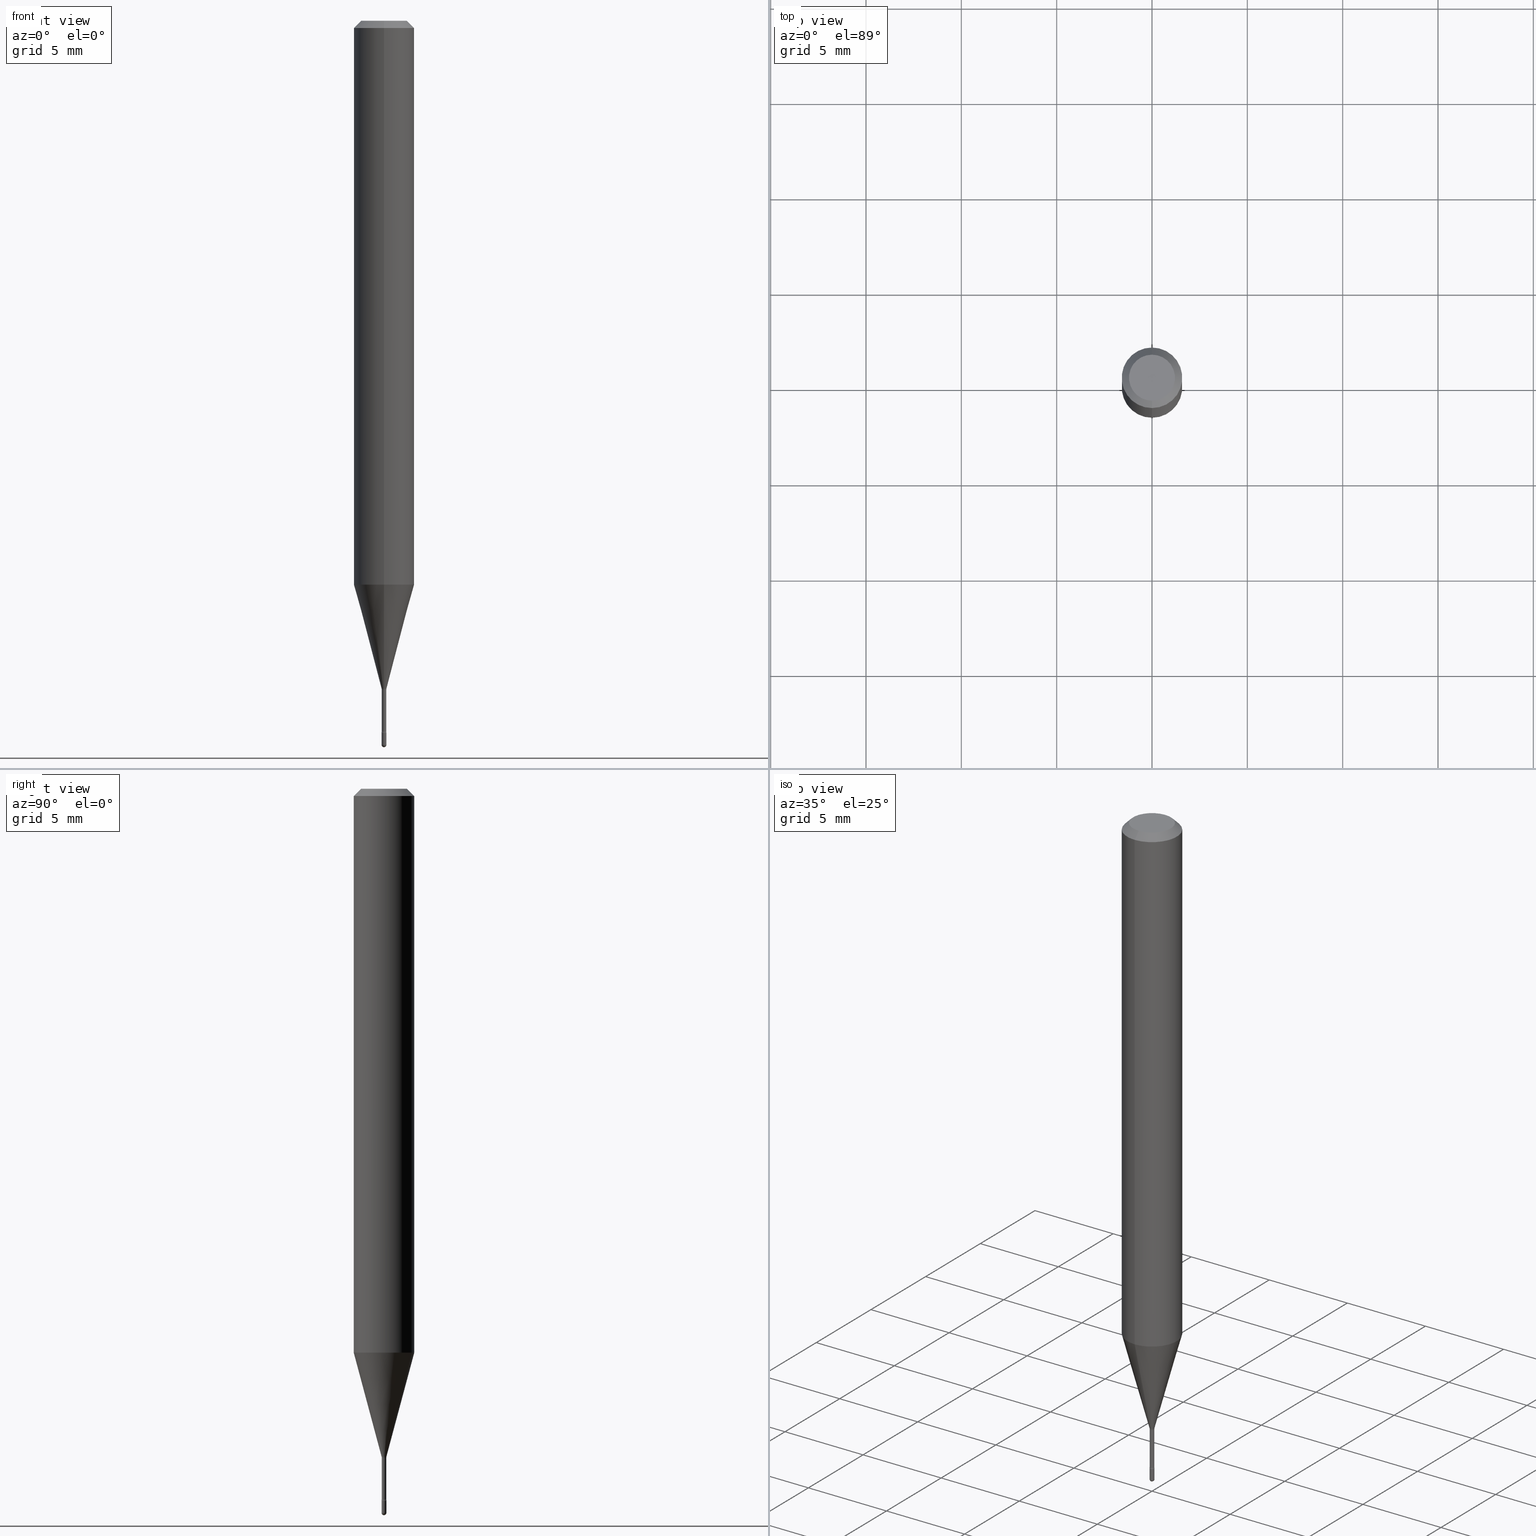
[diagram: canonical four-view strip — front | top / right | iso, engineering-drawing reading convention]
A machine part, canonical four-view strip (front | top / right | iso — engineering-drawing reading convention). The complete STEP part file that produces these views, byte-faithful:
ISO-10303-21;
HEADER;
FILE_DESCRIPTION (( 'STEP AP203' ),
    '1' );
FILE_NAME ('03724.STEP',
    '2024-04-09T20:15:57',
    ( '' ),
    ( '' ),
    'SwSTEP 2.0',
    'SolidWorks 2023',
    '' );
FILE_SCHEMA (( 'CONFIG_CONTROL_DESIGN' ));
ENDSEC;

DATA;
#1 = EDGE_LOOP ( 'NONE', ( #414, #298, #215, #72 ) ) ;
#2 = AXIS2_PLACEMENT_3D ( 'NONE', #37, #175, #291 ) ;
#3 = AXIS2_PLACEMENT_3D ( 'NONE', #145, #476, #554 ) ;
#4 = DIRECTION ( 'NONE',  ( 0.000000000000000000, 0.000000000000000000, 1.000000000000000000 ) ) ;
#5 = ORIENTED_EDGE ( 'NONE', *, *, #209, .T. ) ;
#6 = CARTESIAN_POINT ( 'NONE',  ( -1.169113584055446105E-44, 1.669184350826100908E-30, 4.780733988912460139E-16 ) ) ;
#7 = UNCERTAINTY_MEASURE_WITH_UNIT (LENGTH_MEASURE( 1.000000000000000082E-05 ), #136, 'distance_accuracy_value', 'NONE');
#8 = LINE ( 'NONE', #413, #406 ) ;
#9 = ORIENTED_EDGE ( 'NONE', *, *, #57, .F. ) ;
#10 = DIRECTION ( 'NONE',  ( -2.443524030459947148E-29, 3.494266368371376685E-15, 1.000000000000000000 ) ) ;
#11 = VERTEX_POINT ( 'NONE', #20 ) ;
#12 = CIRCLE ( 'NONE', #474, 0.004700000000000041818 ) ;
#13 = CALENDAR_DATE ( 2024, 9, 4 ) ;
#14 = FACE_OUTER_BOUND ( 'NONE', #1, .T. ) ;
#15 = ORIENTED_EDGE ( 'NONE', *, *, #244, .F. ) ;
#16 = FACE_OUTER_BOUND ( 'NONE', #45, .T. ) ;
#17 = DIRECTION ( 'NONE',  ( 6.982962677686265922E-15, 1.000000000000000000, 0.000000000000000000 ) ) ;
#18 = DATE_AND_TIME ( #105, #93 ) ;
#19 = CARTESIAN_POINT ( 'NONE',  ( -3.491481338839534301E-17, -0.005000000000005126212, -1.470000000000000195 ) ) ;
#20 = CARTESIAN_POINT ( 'NONE',  ( 4.440892098500908179E-16, 0.06249999999999591299, -1.164287463322519978 ) ) ;
#21 = DIRECTION ( 'NONE',  ( 7.105427357601001859E-15, 1.000000000000000000, 0.000000000000000000 ) ) ;
#22 = CIRCLE ( 'NONE', #418, 0.005211112605663922176 ) ;
#23 = ORIENTED_EDGE ( 'NONE', *, *, #234, .F. ) ;
#24 = AXIS2_PLACEMENT_3D ( 'NONE', #83, #385, #30 ) ;
#25 = EDGE_LOOP ( 'NONE', ( #162, #456 ) ) ;
#26 = CARTESIAN_POINT ( 'NONE',  ( 4.440892098500912124E-16, 0.06249999999999995143, -0.01500000000000030129 ) ) ;
#27 = CARTESIAN_POINT ( 'NONE',  ( 3.491481338846802914E-17, 0.004999999999994800270, -1.495000000000000107 ) ) ;
#28 = CARTESIAN_POINT ( 'NONE',  ( 3.665286045689940744E-31, -5.241399552557094167E-17, -0.01500000000000008271 ) ) ;
#29 = ORIENTED_EDGE ( 'NONE', *, *, #389, .T. ) ;
#30 = DIRECTION ( 'NONE',  ( 1.000000000000000000, -6.982962677686336130E-15, 0.000000000000000000 ) ) ;
#31 = AXIS2_PLACEMENT_3D ( 'NONE', #6, #43, #224 ) ;
#32 = CIRCLE ( 'NONE', #3, 0.01500000000000001159 ) ;
#33 = CARTESIAN_POINT ( 'NONE',  ( 0.004999999999999997502, -5.167392381487856456E-15, -1.470000000000000195 ) ) ;
#34 = DIRECTION ( 'NONE',  ( -2.443524030459947148E-29, 3.494266368371377080E-15, 1.000000000000000000 ) ) ;
#35 = DESIGN_CONTEXT ( 'detailed design', #356, 'design' ) ;
#36 = PERSON_AND_ORGANIZATION ( #51, #239 ) ;
#37 = CARTESIAN_POINT ( 'NONE',  ( 3.316907271900976096E-16, 0.04749999999999999362, 3.175167536350543360E-17 ) ) ;
#38 = VECTOR ( 'NONE', #10, 39.37007874015748143 ) ;
#39 = EDGE_CURVE ( 'NONE', #313, #143, #252, .T. ) ;
#40 = FACE_OUTER_BOUND ( 'NONE', #505, .T. ) ;
#41 =( NAMED_UNIT ( * ) SI_UNIT ( $, .STERADIAN. ) SOLID_ANGLE_UNIT ( ) );
#42 = EDGE_LOOP ( 'NONE', ( #77, #355, #320, #253 ) ) ;
#43 = DIRECTION ( 'NONE',  ( -2.443524030459947148E-29, 3.494266368371377080E-15, 1.000000000000000000 ) ) ;
#44 = PRODUCT_RELATED_PRODUCT_CATEGORY ( 'detail', '', ( #432 ) ) ;
#45 = EDGE_LOOP ( 'NONE', ( #50, #486, #377, #352 ) ) ;
#46 = CLOSED_SHELL ( 'NONE', ( #375, #263, #490, #428, #188, #359, #230, #515, #511, #315, #300, #152, #124, #393 ) ) ;
#47 = DIRECTION ( 'NONE',  ( -6.982962677686265922E-15, -1.000000000000000000, 0.000000000000000000 ) ) ;
#48 = AXIS2_PLACEMENT_3D ( 'NONE', #506, #423, #383 ) ;
#49 = APPROVAL_ROLE ( '' ) ;
#50 = ORIENTED_EDGE ( 'NONE', *, *, #451, .T. ) ;
#51 = PERSON ( 'UNSPECIFIED', 'UNSPECIFIED', 'UNSPECIFIED', ('UNSPECIFIED'), ('UNSPECIFIED'), ('UNSPECIFIED') ) ;
#52 = DIRECTION ( 'NONE',  ( 2.443524030459947148E-29, -3.494266368371377080E-15, -1.000000000000000000 ) ) ;
#53 = ORIENTED_EDGE ( 'NONE', *, *, #163, .F. ) ;
#54 = PERSON_AND_ORGANIZATION_ROLE ( 'design_supplier' ) ;
#55 = DIRECTION ( 'NONE',  ( -6.982962677686266711E-15, -1.000000000000000000, 0.000000000000000000 ) ) ;
#56 = ORIENTED_EDGE ( 'NONE', *, *, #127, .T. ) ;
#57 = EDGE_CURVE ( 'NONE', #248, #143, #132, .T. ) ;
#58 = CARTESIAN_POINT ( 'NONE',  ( 3.339550858072488261E-17, 0.004700000000000025338, 4.616503469599005180E-16 ) ) ;
#59 = VECTOR ( 'NONE', #403, 39.37007874015748143 ) ;
#60 = PERSON_AND_ORGANIZATION ( #51, #239 ) ;
#61 = AXIS2_PLACEMENT_3D ( 'NONE', #62, #411, #332 ) ;
#62 = CARTESIAN_POINT ( 'NONE',  ( 2.844964394991831365E-29, -4.068330526204302951E-15, -1.164287463322519756 ) ) ;
#63 = VERTEX_POINT ( 'NONE', #27 ) ;
#64 = DIMENSIONAL_EXPONENTS ( 1.000000000000000000, 0.000000000000000000, 0.000000000000000000, 0.000000000000000000, 0.000000000000000000, 0.000000000000000000, 0.000000000000000000 ) ;
#65 = APPROVAL_DATE_TIME ( #318, #326 ) ;
#66 = CARTESIAN_POINT ( 'NONE',  ( 3.655975865246779122E-29, -5.219764601570503141E-15, -1.495000000000000107 ) ) ;
#67 = EDGE_LOOP ( 'NONE', ( #194, #398, #412, #421 ) ) ;
#68 = FACE_OUTER_BOUND ( 'NONE', #233, .T. ) ;
#69 = EDGE_CURVE ( 'NONE', #535, #151, #208, .T. ) ;
#70 = FACE_OUTER_BOUND ( 'NONE', #241, .T. ) ;
#71 = VECTOR ( 'NONE', #460, 39.37007874015748143 ) ;
#72 = ORIENTED_EDGE ( 'NONE', *, *, #434, .T. ) ;
#73 = LOCAL_TIME ( 16, 15, 57.00000000000000000, #402 ) ;
#74 = ORIENTED_EDGE ( 'NONE', *, *, #524, .F. ) ;
#75 = CARTESIAN_POINT ( 'NONE',  ( 0.000000000000000000, 0.000000000000000000, 0.000000000000000000 ) ) ;
#76 = CARTESIAN_POINT ( 'NONE',  ( -3.552713678796857452E-17, -0.005000000000005238969, -1.495000000000000107 ) ) ;
#77 = ORIENTED_EDGE ( 'NONE', *, *, #322, .F. ) ;
#78 = ADVANCED_FACE ( 'NONE', ( #333 ), #243, .T. ) ;
#79 = CARTESIAN_POINT ( 'NONE',  ( 1.399769189447734763E-16, 0.01969999999999517276, -1.381974787463811305 ) ) ;
#80 = PLANE ( 'NONE',  #101 ) ;
#81 = ORIENTED_EDGE ( 'NONE', *, *, #348, .T. ) ;
#82 = FACE_OUTER_BOUND ( 'NONE', #67, .T. ) ;
#83 = CARTESIAN_POINT ( 'NONE',  ( 3.655975865246779122E-29, -5.219764601570503141E-15, -1.495000000000000107 ) ) ;
#84 = CIRCLE ( 'NONE', #537, 0.06250000000000000000 ) ;
#85 = CONICAL_SURFACE ( 'NONE', #397, 0.06250000000000000000, 0.7853981633974483900 ) ;
#86 = CARTESIAN_POINT ( 'NONE',  ( 3.584686497638396424E-29, -5.126141308090625159E-15, -1.467015037688680579 ) ) ;
#87 = DIRECTION ( 'NONE',  ( -2.445468806185136597E-29, 3.491481338843145583E-15, 1.000000000000000000 ) ) ;
#88 = DIRECTION ( 'NONE',  ( -2.443524030459947148E-29, 3.494266368371377080E-15, 1.000000000000000000 ) ) ;
#89 = FACE_OUTER_BOUND ( 'NONE', #178, .T. ) ;
#90 = ORIENTED_EDGE ( 'NONE', *, *, #477, .F. ) ;
#91 = AXIS2_PLACEMENT_3D ( 'NONE', #217, #306, #254 ) ;
#92 = AXIS2_PLACEMENT_3D ( 'NONE', #79, #207, #258 ) ;
#93 = LOCAL_TIME ( 16, 15, 57.00000000000000000, #240 ) ;
#94 = DIRECTION ( 'NONE',  ( 1.000000000000000000, 0.000000000000000000, 0.000000000000000000 ) ) ;
#95 = EDGE_LOOP ( 'NONE', ( #23, #284, #400, #404 ) ) ;
#96 = CC_DESIGN_PERSON_AND_ORGANIZATION_ASSIGNMENT ( #196, #228, ( #518 ) ) ;
#97 = APPLICATION_PROTOCOL_DEFINITION ( 'international standard', 'config_control_design', 1994, #356 ) ;
#98 = ORIENTED_EDGE ( 'NONE', *, *, #525, .T. ) ;
#99 = PERSON_AND_ORGANIZATION ( #51, #239 ) ;
#100 = VERTEX_POINT ( 'NONE', #76 ) ;
#101 = AXIS2_PLACEMENT_3D ( 'NONE', #520, #137, #479 ) ;
#102 = DIRECTION ( 'NONE',  ( -1.807323732225327773E-15, -0.2588190451025178529, 0.9659258262890690894 ) ) ;
#103 = VERTEX_POINT ( 'NONE', #117 ) ;
#104 = EDGE_CURVE ( 'NONE', #392, #151, #372, .T. ) ;
#105 = CALENDAR_DATE ( 2024, 9, 4 ) ;
#106 = DIRECTION ( 'NONE',  ( -2.445468806185136877E-29, 3.491481338843145188E-15, 1.000000000000000000 ) ) ;
#107 = ORIENTED_EDGE ( 'NONE', *, *, #434, .F. ) ;
#108 = CARTESIAN_POINT ( 'NONE',  ( 3.584686497638396424E-29, -5.126141308090625159E-15, -1.467015037688680579 ) ) ;
#109 = COORDINATED_UNIVERSAL_TIME_OFFSET ( 5, 0, .BEHIND. ) ;
#110 = LINE ( 'NONE', #405, #38 ) ;
#111 = ORIENTED_EDGE ( 'NONE', *, *, #39, .T. ) ;
#112 = TOROIDAL_SURFACE ( 'NONE', #466, 0.01970000000000001958, 0.01499999999999997689 ) ;
#113 = APPROVAL_ROLE ( '' ) ;
#114 = DIRECTION ( 'NONE',  ( -6.982962677686266711E-15, -1.000000000000000000, 3.494266368371377080E-15 ) ) ;
#115 = CARTESIAN_POINT ( 'NONE',  ( -1.169113584055446105E-44, 1.669184350826100908E-30, 4.780733988912460139E-16 ) ) ;
#116 = DIRECTION ( 'NONE',  ( -2.445468806185136597E-29, 3.491481338843145583E-15, 1.000000000000000000 ) ) ;
#117 = CARTESIAN_POINT ( 'NONE',  ( 0.004999999999999997502, -5.211035898223395623E-15, -1.495000000000000107 ) ) ;
#118 = PLANE ( 'NONE',  #349 ) ;
#119 = VERTEX_POINT ( 'NONE', #329 ) ;
#120 = EDGE_LOOP ( 'NONE', ( #361, #277, #422, #540 ) ) ;
#121 = CIRCLE ( 'NONE', #266, 0.01499999999999997689 ) ;
#122 = CARTESIAN_POINT ( 'NONE',  ( -4.364351673553916201E-16, -0.06250000000000000000, 6.964650469144572047E-16 ) ) ;
#123 = AXIS2_PLACEMENT_3D ( 'NONE', #558, #304, #471 ) ;
#124 = ADVANCED_FACE ( 'NONE', ( #502 ), #462, .T. ) ;
#125 = CYLINDRICAL_SURFACE ( 'NONE', #467, 0.004999999999999997502 ) ;
#126 = CARTESIAN_POINT ( 'NONE',  ( -0.004999999999999997502, -5.140593948046958933E-15, -1.495000000000000107 ) ) ;
#127 = EDGE_CURVE ( 'NONE', #11, #392, #362, .T. ) ;
#128 = CARTESIAN_POINT ( 'NONE',  ( -3.773273898774340269E-16, -0.04749999999999999362, 8.336290932868603194E-17 ) ) ;
#129 = SPHERICAL_SURFACE ( 'NONE', #501, 0.005000000000000040870 ) ;
#130 = PRODUCT_DEFINITION_SHAPE ( 'NONE', 'NONE',  #155 ) ;
#131 = CYLINDRICAL_SURFACE ( 'NONE', #475, 0.06250000000000000000 ) ;
#132 = CIRCLE ( 'NONE', #226, 0.004999999999999997502 ) ;
#133 = CONICAL_SURFACE ( 'NONE', #438, 0.005211112605663922176, 0.2617993877991499074 ) ;
#134 = CIRCLE ( 'NONE', #123, 0.06250000000000000000 ) ;
#135 = CARTESIAN_POINT ( 'NONE',  ( 3.367402144313870632E-29, -4.815422281500041932E-15, -1.378092501787273605 ) ) ;
#136 =( CONVERSION_BASED_UNIT ( 'INCH', #441 ) LENGTH_UNIT ( ) NAMED_UNIT ( #64 ) );
#137 = DIRECTION ( 'NONE',  ( -2.443524030459947148E-29, 3.494266368371376685E-15, 1.000000000000000000 ) ) ;
#138 = EDGE_LOOP ( 'NONE', ( #523, #425, #453, #314, #369 ) ) ;
#139 = VECTOR ( 'NONE', #238, 39.37007874015748143 ) ;
#140 = CIRCLE ( 'NONE', #408, 0.01499999999999997689 ) ;
#141 = ORIENTED_EDGE ( 'NONE', *, *, #234, .T. ) ;
#142 = LINE ( 'NONE', #58, #139 ) ;
#143 = VERTEX_POINT ( 'NONE', #552 ) ;
#144 = APPROVAL_DATE_TIME ( #183, #470 ) ;
#145 = CARTESIAN_POINT ( 'NONE',  ( -1.375643647503856878E-16, -0.01970000000000482823, -1.381974787463811305 ) ) ;
#146 = ORIENTED_EDGE ( 'NONE', *, *, #104, .T. ) ;
#147 = CIRCLE ( 'NONE', #249, 0.04749999999999999362 ) ;
#148 = CIRCLE ( 'NONE', #287, 0.005000000000000001839 ) ;
#149 = DIRECTION ( 'NONE',  ( -1.000000000000000000, 7.105427357601001070E-15, -4.926315508542082329E-29 ) ) ;
#150 = ORIENTED_EDGE ( 'NONE', *, *, #322, .T. ) ;
#151 = VERTEX_POINT ( 'NONE', #342 ) ;
#152 = ADVANCED_FACE ( 'NONE', ( #82 ), #112, .F. ) ;
#153 = DIRECTION ( 'NONE',  ( -2.443524030459947148E-29, 3.494266368371377080E-15, 1.000000000000000000 ) ) ;
#154 = DIRECTION ( 'NONE',  ( -2.443524030459947148E-29, 3.494266368371376685E-15, 1.000000000000000000 ) ) ;
#155 = PRODUCT_DEFINITION ( 'UNKNOWN', '', #518, #35 ) ;
#156 = TOROIDAL_SURFACE ( 'NONE', #338, 0.01970000000000000223, 0.01500000000000001332 ) ;
#157 = CALENDAR_DATE ( 2024, 9, 4 ) ;
#158 = VECTOR ( 'NONE', #484, 39.37007874015748143 ) ;
#159 = CARTESIAN_POINT ( 'NONE',  ( 3.339550858076068334E-17, 0.004699999999995178521, -1.381974787463811305 ) ) ;
#160 = EDGE_CURVE ( 'NONE', #481, #529, #257, .T. ) ;
#161 = DIRECTION ( 'NONE',  ( -6.982962677686265133E-15, -1.000000000000000000, 3.494266368371381813E-15 ) ) ;
#162 = ORIENTED_EDGE ( 'NONE', *, *, #57, .T. ) ;
#163 = EDGE_CURVE ( 'NONE', #529, #450, #142, .T. ) ;
#164 = DIRECTION ( 'NONE',  ( -6.982962677686265922E-15, -1.000000000000000000, 3.494266368371377869E-15 ) ) ;
#165 = AXIS2_PLACEMENT_3D ( 'NONE', #193, #494, #449 ) ;
#166 = CARTESIAN_POINT ( 'NONE',  ( -3.281992458508989618E-17, -0.004700000000005167926, -1.467015037688680579 ) ) ;
#167 = CIRCLE ( 'NONE', #24, 0.004999999999999997502 ) ;
#168 = ORIENTED_EDGE ( 'NONE', *, *, #69, .T. ) ;
#169 = DIRECTION ( 'NONE',  ( -2.445468806185136597E-29, 3.491481338843145583E-15, 1.000000000000000000 ) ) ;
#170 = DIRECTION ( 'NONE',  ( 6.982962677686265922E-15, 1.000000000000000000, 0.000000000000000000 ) ) ;
#171 = DIRECTION ( 'NONE',  ( 2.443524030459947148E-29, -3.494266368371377080E-15, -1.000000000000000000 ) ) ;
#172 = DIRECTION ( 'NONE',  ( -6.982962677686265922E-15, -1.000000000000000000, 0.000000000000000000 ) ) ;
#173 = CARTESIAN_POINT ( 'NONE',  ( 4.364351673553919652E-16, 0.06249999999999995143, -0.01500000000000030129 ) ) ;
#174 = CARTESIAN_POINT ( 'NONE',  ( 3.668417000849999602E-29, -5.236915846564931875E-15, -1.500000000000000222 ) ) ;
#175 = DIRECTION ( 'NONE',  ( 2.443524030459947148E-29, -3.494266368371376685E-15, -1.000000000000000000 ) ) ;
#176 = MANIFOLD_SOLID_BREP ( 'Body-Move/Copy2[1]', #417 ) ;
#177 = APPLICATION_PROTOCOL_DEFINITION ( 'international standard', 'config_control_design', 1994, #275 ) ;
#178 = EDGE_LOOP ( 'NONE', ( #81, #5 ) ) ;
#179 = CIRCLE ( 'NONE', #489, 0.005000000000000001839 ) ;
#180 = AXIS2_PLACEMENT_3D ( 'NONE', #521, #562, #530 ) ;
#181 = CARTESIAN_POINT ( 'NONE',  ( 3.655975865246779122E-29, -5.219764601570503141E-15, -1.495000000000000107 ) ) ;
#182 = EDGE_LOOP ( 'NONE', ( #531, #444, #186, #394 ) ) ;
#183 = DATE_AND_TIME ( #410, #503 ) ;
#184 = CARTESIAN_POINT ( 'NONE',  ( 3.665286045689940744E-31, -5.241399552557094167E-17, -0.01500000000000008271 ) ) ;
#185 = ADVANCED_BREP_SHAPE_REPRESENTATION ( '03724', ( #176, #195, #309 ), #457 ) ;
#186 = ORIENTED_EDGE ( 'NONE', *, *, #564, .T. ) ;
#187 = CC_DESIGN_DATE_AND_TIME_ASSIGNMENT ( #546, #199, ( #346 ) ) ;
#188 = ADVANCED_FACE ( 'NONE', ( #16 ), #545, .T. ) ;
#189 = PERSON_AND_ORGANIZATION ( #51, #239 ) ;
#190 = DIRECTION ( 'NONE',  ( -7.105427357600999492E-15, -1.000000000000000000, 0.000000000000000000 ) ) ;
#191 = EDGE_LOOP ( 'NONE', ( #442, #270, #448, #225 ) ) ;
#192 = TOROIDAL_SURFACE ( 'NONE', #165, 0.01970000000000000223, 0.01500000000000001332 ) ;
#193 = CARTESIAN_POINT ( 'NONE',  ( 3.376595547336323602E-29, -4.829407693671720088E-15, -1.381974787463811305 ) ) ;
#194 = ORIENTED_EDGE ( 'NONE', *, *, #541, .F. ) ;
#195 = MANIFOLD_SOLID_BREP ( 'Body-Move/Copy2[2]', #46 ) ;
#196 = PERSON_AND_ORGANIZATION ( #51, #239 ) ;
#197 = DIRECTION ( 'NONE',  ( -6.982962677686266711E-15, -1.000000000000000000, 0.000000000000000000 ) ) ;
#198 = VERTEX_POINT ( 'NONE', #353 ) ;
#199 = DATE_TIME_ROLE ( 'classification_date' ) ;
#200 = DIRECTION ( 'NONE',  ( -6.982962677686265922E-15, -1.000000000000000000, 3.483106191921935554E-15 ) ) ;
#201 = CARTESIAN_POINT ( 'NONE',  ( -4.287811248607203282E-16, -0.06250000000000005551, -0.01499999999999986587 ) ) ;
#202 = AXIS2_PLACEMENT_3D ( 'NONE', #341, #88, #344 ) ;
#203 = LOCAL_TIME ( 16, 15, 57.00000000000000000, #536 ) ;
#204 = EDGE_CURVE ( 'NONE', #297, #63, #220, .T. ) ;
#205 = FACE_OUTER_BOUND ( 'NONE', #138, .T. ) ;
#206 = DIRECTION ( 'NONE',  ( -6.982962677686265922E-15, -1.000000000000000000, 4.370956789862821150E-15 ) ) ;
#207 = DIRECTION ( 'NONE',  ( 1.000000000000000000, -7.105427357601001070E-15, 4.926349615317055150E-29 ) ) ;
#208 = LINE ( 'NONE', #201, #71 ) ;
#209 = EDGE_CURVE ( 'NONE', #535, #464, #147, .T. ) ;
#210 = CIRCLE ( 'NONE', #527, 0.004700000000000007123 ) ;
#211 = DIRECTION ( 'NONE',  ( -2.445468806185136597E-29, 3.491481338843145583E-15, 1.000000000000000000 ) ) ;
#212 = APPROVAL_PERSON_ORGANIZATION ( #327, #326, #113 ) ;
#213 = EDGE_CURVE ( 'NONE', #450, #198, #299, .T. ) ;
#214 = CYLINDRICAL_SURFACE ( 'NONE', #447, 0.004700000000000025338 ) ;
#215 = ORIENTED_EDGE ( 'NONE', *, *, #477, .T. ) ;
#216 = CC_DESIGN_DATE_AND_TIME_ASSIGNMENT ( #278, #358, ( #155 ) ) ;
#217 = CARTESIAN_POINT ( 'NONE',  ( 3.376888602657601301E-29, -4.828988021771977195E-15, -1.381974787463811305 ) ) ;
#218 = APPROVAL_STATUS ( 'not_yet_approved' ) ;
#219 = DIRECTION ( 'NONE',  ( -6.982962677686266711E-15, -1.000000000000000000, 0.000000000000000000 ) ) ;
#220 = CIRCLE ( 'NONE', #396, 0.005000000000000040870 ) ;
#221 = CIRCLE ( 'NONE', #491, 0.004999999999999997502 ) ;
#222 = CARTESIAN_POINT ( 'NONE',  ( -1.169113584055446105E-44, 1.669184350826100908E-30, 4.780733988912460139E-16 ) ) ;
#223 = EDGE_LOOP ( 'NONE', ( #508, #15 ) ) ;
#224 = DIRECTION ( 'NONE',  ( -6.982962677686265922E-15, -1.000000000000000000, 3.494266368371377869E-15 ) ) ;
#225 = ORIENTED_EDGE ( 'NONE', *, *, #127, .F. ) ;
#226 = AXIS2_PLACEMENT_3D ( 'NONE', #292, #544, #325 ) ;
#227 = CIRCLE ( 'NONE', #92, 0.01500000000000001159 ) ;
#228 = PERSON_AND_ORGANIZATION_ROLE ( 'creator' ) ;
#229 = VERTEX_POINT ( 'NONE', #310 ) ;
#230 = ADVANCED_FACE ( 'NONE', ( #386 ), #429, .T. ) ;
#231 = PERSON_AND_ORGANIZATION_ROLE ( 'creator' ) ;
#232 = DIRECTION ( 'NONE',  ( 6.982962677686265922E-15, 1.000000000000000000, -3.483106191921935554E-15 ) ) ;
#233 = EDGE_LOOP ( 'NONE', ( #268, #168, #488, #424 ) ) ;
#234 = EDGE_CURVE ( 'NONE', #529, #481, #12, .T. ) ;
#235 = DIRECTION ( 'NONE',  ( -2.443524030459947148E-29, 3.494266368371377080E-15, 1.000000000000000000 ) ) ;
#236 = EDGE_LOOP ( 'NONE', ( #526, #111, #9, #557, #439 ) ) ;
#237 = AXIS2_PLACEMENT_3D ( 'NONE', #115, #551, #161 ) ;
#238 = DIRECTION ( 'NONE',  ( -2.443524030459947148E-29, 3.494266368371376685E-15, 1.000000000000000000 ) ) ;
#239 = ORGANIZATION ( 'UNSPECIFIED', 'UNSPECIFIED', '' ) ;
#240 = COORDINATED_UNIVERSAL_TIME_OFFSET ( 5, 0, .BEHIND. ) ;
#241 = EDGE_LOOP ( 'NONE', ( #280, #56, #146, #74 ) ) ;
#242 = DIRECTION ( 'NONE',  ( -2.443524030459947148E-29, 3.494266368371377080E-15, 1.000000000000000000 ) ) ;
#243 = SPHERICAL_SURFACE ( 'NONE', #267, 0.005000000000000040870 ) ;
#244 = EDGE_CURVE ( 'NONE', #229, #317, #179, .T. ) ;
#245 = CARTESIAN_POINT ( 'NONE',  ( 3.446132268440081484E-17, 0.004699999999994916577, -1.467015037688680579 ) ) ;
#246 = CARTESIAN_POINT ( 'NONE',  ( 2.844964394991831365E-29, -4.068330526204302951E-15, -1.164287463322519756 ) ) ;
#247 = VECTOR ( 'NONE', #366, 39.37007874015748143 ) ;
#248 = VERTEX_POINT ( 'NONE', #33 ) ;
#249 = AXIS2_PLACEMENT_3D ( 'NONE', #290, #311, #516 ) ;
#250 = LOCAL_TIME ( 16, 15, 57.00000000000000000, #367 ) ;
#251 = FACE_OUTER_BOUND ( 'NONE', #236, .T. ) ;
#252 = LINE ( 'NONE', #548, #247 ) ;
#253 = ORIENTED_EDGE ( 'NONE', *, *, #566, .F. ) ;
#254 = DIRECTION ( 'NONE',  ( -6.982962677686267499E-15, -1.000000000000000000, 0.000000000000000000 ) ) ;
#255 = ORIENTED_EDGE ( 'NONE', *, *, #160, .T. ) ;
#256 = CC_DESIGN_PERSON_AND_ORGANIZATION_ASSIGNMENT ( #99, #54, ( #518 ) ) ;
#257 = CIRCLE ( 'NONE', #509, 0.004700000000000041818 ) ;
#258 = DIRECTION ( 'NONE',  ( 7.105427357601001859E-15, 1.000000000000000000, 0.000000000000000000 ) ) ;
#259 = CC_DESIGN_APPROVAL ( #470, ( #518 ) ) ;
#260 = CARTESIAN_POINT ( 'NONE',  ( 3.655975865246779122E-29, -5.219764601570503141E-15, -1.495000000000000107 ) ) ;
#261 = MECHANICAL_CONTEXT ( 'NONE', #275, 'mechanical' ) ;
#262 = CARTESIAN_POINT ( 'NONE',  ( -1.375643647503837156E-16, -0.01970000000000514395, -1.467015037688680579 ) ) ;
#263 = ADVANCED_FACE ( 'NONE', ( #40 ), #214, .T. ) ;
#264 = PLANE ( 'NONE',  #2 ) ;
#265 = CYLINDRICAL_SURFACE ( 'NONE', #180, 0.004999999999999997502 ) ;
#266 = AXIS2_PLACEMENT_3D ( 'NONE', #262, #384, #561 ) ;
#267 = AXIS2_PLACEMENT_3D ( 'NONE', #497, #289, #17 ) ;
#268 = ORIENTED_EDGE ( 'NONE', *, *, #209, .F. ) ;
#269 = CARTESIAN_POINT ( 'NONE',  ( 3.655975865246779122E-29, -5.219764601570503141E-15, -1.495000000000000107 ) ) ;
#270 = ORIENTED_EDGE ( 'NONE', *, *, #380, .T. ) ;
#271 = ORIENTED_EDGE ( 'NONE', *, *, #163, .T. ) ;
#272 = EDGE_CURVE ( 'NONE', #481, #317, #121, .T. ) ;
#273 = VECTOR ( 'NONE', #154, 39.37007874015748143 ) ;
#274 = APPROVAL_PERSON_ORGANIZATION ( #532, #470, #49 ) ;
#275 = APPLICATION_CONTEXT ( 'configuration controlled 3d designs of mechanical parts and assemblies' ) ;
#276 = CARTESIAN_POINT ( 'NONE',  ( 2.405581959609744668E-16, 0.005211112605659106584, -1.378092501787273605 ) ) ;
#277 = ORIENTED_EDGE ( 'NONE', *, *, #522, .T. ) ;
#278 = DATE_AND_TIME ( #13, #203 ) ;
#279 = CARTESIAN_POINT ( 'NONE',  ( -4.364351673553632211E-16, -0.06250000000000408007, -1.164287463322519312 ) ) ;
#280 = ORIENTED_EDGE ( 'NONE', *, *, #401, .F. ) ;
#281 = CC_DESIGN_PERSON_AND_ORGANIZATION_ASSIGNMENT ( #433, #528, ( #432 ) ) ;
#282 = DIRECTION ( 'NONE',  ( -2.443524030459947148E-29, 3.494266368371377080E-15, 1.000000000000000000 ) ) ;
#283 = CARTESIAN_POINT ( 'NONE',  ( 3.376595547336323602E-29, -4.829407693671720088E-15, -1.381974787463811305 ) ) ;
#284 = ORIENTED_EDGE ( 'NONE', *, *, #541, .T. ) ;
#285 = CIRCLE ( 'NONE', #345, 0.004999999999999997502 ) ;
#286 = DIRECTION ( 'NONE',  ( 6.982962677686265133E-15, 1.000000000000000000, 0.000000000000000000 ) ) ;
#287 = AXIS2_PLACEMENT_3D ( 'NONE', #459, #242, #534 ) ;
#288 = DIRECTION ( 'NONE',  ( 1.000000000000000000, -6.982962677686336130E-15, 0.000000000000000000 ) ) ;
#289 = DIRECTION ( 'NONE',  ( -1.000000000000000000, 6.982962677686265922E-15, -4.883557194083113462E-29 ) ) ;
#290 = CARTESIAN_POINT ( 'NONE',  ( 2.009413646625942603E-45, -2.900093671194902056E-31, -8.261474316895435273E-17 ) ) ;
#291 = DIRECTION ( 'NONE',  ( 6.982962677686265922E-15, 1.000000000000000000, -3.494266368371376685E-15 ) ) ;
#292 = CARTESIAN_POINT ( 'NONE',  ( 3.594839145092150820E-29, -5.132477568099424807E-15, -1.470000000000000195 ) ) ;
#293 = ADVANCED_FACE ( 'NONE', ( #565 ), #129, .T. ) ;
#294 = DIRECTION ( 'NONE',  ( -2.438088387897960049E-29, 3.491481338843145188E-15, 1.000000000000000000 ) ) ;
#295 = EDGE_CURVE ( 'NONE', #119, #337, #563, .T. ) ;
#296 = EDGE_CURVE ( 'NONE', #143, #248, #285, .T. ) ;
#297 = VERTEX_POINT ( 'NONE', #174 ) ;
#298 = ORIENTED_EDGE ( 'NONE', *, *, #295, .F. ) ;
#299 = CIRCLE ( 'NONE', #91, 0.004700000000000007123 ) ;
#300 = ADVANCED_FACE ( 'NONE', ( #472 ), #80, .F. ) ;
#301 = TOROIDAL_SURFACE ( 'NONE', #48, 0.01970000000000001958, 0.01499999999999997689 ) ;
#302 = CARTESIAN_POINT ( 'NONE',  ( 3.702718207185754248E-17, 0.005211112605659106584, -1.378092501787273605 ) ) ;
#303 = ORIENTED_EDGE ( 'NONE', *, *, #380, .F. ) ;
#304 = DIRECTION ( 'NONE',  ( -2.443524030459947148E-29, 3.494266368371377080E-15, 1.000000000000000000 ) ) ;
#305 = CARTESIAN_POINT ( 'NONE',  ( 1.399769189447756949E-16, 0.01969999999999489174, -1.467015037688680579 ) ) ;
#306 = DIRECTION ( 'NONE',  ( -2.443524030459947148E-29, 3.494266368371377080E-15, 1.000000000000000000 ) ) ;
#307 = CIRCLE ( 'NONE', #373, 0.005000000000000040870 ) ;
#308 = DIRECTION ( 'NONE',  ( -2.443524030459947148E-29, 3.494266368371377080E-15, 1.000000000000000000 ) ) ;
#309 = AXIS2_PLACEMENT_3D ( 'NONE', #436, #4, #94 ) ;
#310 = CARTESIAN_POINT ( 'NONE',  ( 3.552713678804085390E-17, 0.004999999999994854047, -1.470000000000000195 ) ) ;
#311 = DIRECTION ( 'NONE',  ( -2.443524030459947148E-29, 3.494266368371377080E-15, 1.000000000000000000 ) ) ;
#312 = CC_DESIGN_SECURITY_CLASSIFICATION ( #346, ( #518 ) ) ;
#313 = VERTEX_POINT ( 'NONE', #126 ) ;
#314 = ORIENTED_EDGE ( 'NONE', *, *, #376, .T. ) ;
#315 = ADVANCED_FACE ( 'NONE', ( #89 ), #264, .F. ) ;
#316 = DIRECTION ( 'NONE',  ( -2.443524030459947148E-29, 3.494266368371377080E-15, 1.000000000000000000 ) ) ;
#317 = VERTEX_POINT ( 'NONE', #19 ) ;
#318 = DATE_AND_TIME ( #458, #73 ) ;
#319 = CARTESIAN_POINT ( 'NONE',  ( 2.009413646625942603E-45, -2.900093671194902056E-31, -8.261474316895435273E-17 ) ) ;
#320 = ORIENTED_EDGE ( 'NONE', *, *, #465, .F. ) ;
#321 = AXIS2_PLACEMENT_3D ( 'NONE', #135, #34, #482 ) ;
#322 = EDGE_CURVE ( 'NONE', #297, #100, #307, .T. ) ;
#323 = EDGE_LOOP ( 'NONE', ( #303, #98, #407, #90 ) ) ;
#324 = CARTESIAN_POINT ( 'NONE',  ( 0.004999999999999997502, -3.491481338843131630E-17, 2.438088387897967108E-31 ) ) ;
#325 = DIRECTION ( 'NONE',  ( 1.000000000000000000, -6.982962677686336130E-15, 0.000000000000000000 ) ) ;
#326 = APPROVAL ( #499, 'UNSPECIFIED' ) ;
#327 = PERSON_AND_ORGANIZATION ( #51, #239 ) ;
#328 = CARTESIAN_POINT ( 'NONE',  ( 3.840629472727447874E-16, 0.04749999999999999362, -2.485923956665947374E-16 ) ) ;
#329 = CARTESIAN_POINT ( 'NONE',  ( -3.638900483453792750E-17, -0.005211112605668737768, -1.378092501787273605 ) ) ;
#330 = AXIS2_PLACEMENT_3D ( 'NONE', #319, #500, #550 ) ;
#331 = APPROVAL_PERSON_ORGANIZATION ( #36, #426, #387 ) ;
#332 = DIRECTION ( 'NONE',  ( -6.982962677686265922E-15, -1.000000000000000000, 4.370956789862821150E-15 ) ) ;
#333 = FACE_OUTER_BOUND ( 'NONE', #42, .T. ) ;
#334 = FACE_OUTER_BOUND ( 'NONE', #95, .T. ) ;
#335 = ORIENTED_EDGE ( 'NONE', *, *, #389, .F. ) ;
#336 = CARTESIAN_POINT ( 'NONE',  ( -1.169113584055446105E-44, 1.669184350826100908E-30, 4.780733988912460139E-16 ) ) ;
#337 = VERTEX_POINT ( 'NONE', #276 ) ;
#338 = AXIS2_PLACEMENT_3D ( 'NONE', #283, #235, #114 ) ;
#339 = CIRCLE ( 'NONE', #556, 0.004999999999999997502 ) ;
#340 = DIRECTION ( 'NONE',  ( 1.000000000000000000, -6.982962677686265922E-15, 4.876176775795935793E-29 ) ) ;
#341 = CARTESIAN_POINT ( 'NONE',  ( 3.367402144313870632E-29, -4.815422281500041932E-15, -1.378092501787273605 ) ) ;
#342 = CARTESIAN_POINT ( 'NONE',  ( -4.364351673553912750E-16, -0.06250000000000005551, -0.01499999999999986587 ) ) ;
#343 = CARTESIAN_POINT ( 'NONE',  ( 3.591980324776122740E-29, -5.136571561505923909E-15, -1.470000000000000195 ) ) ;
#344 = DIRECTION ( 'NONE',  ( -6.982962677686266711E-15, -1.000000000000000000, 0.000000000000000000 ) ) ;
#345 = AXIS2_PLACEMENT_3D ( 'NONE', #431, #435, #514 ) ;
#346 = SECURITY_CLASSIFICATION ( '', '', #364 ) ;
#347 = DIRECTION ( 'NONE',  ( -2.443524030459947148E-29, 3.494266368371377080E-15, 1.000000000000000000 ) ) ;
#348 = EDGE_CURVE ( 'NONE', #464, #535, #390, .T. ) ;
#349 = AXIS2_PLACEMENT_3D ( 'NONE', #560, #294, #340 ) ;
#350 = ORIENTED_EDGE ( 'NONE', *, *, #485, .F. ) ;
#351 = DIRECTION ( 'NONE',  ( 1.000000000000000000, -6.982962677686265922E-15, 4.883557194083112340E-29 ) ) ;
#352 = ORIENTED_EDGE ( 'NONE', *, *, #104, .F. ) ;
#353 = CARTESIAN_POINT ( 'NONE',  ( -3.281992458509173891E-17, -0.004700000000004836594, -1.381974787463811305 ) ) ;
#354 = FACE_OUTER_BOUND ( 'NONE', #120, .T. ) ;
#355 = ORIENTED_EDGE ( 'NONE', *, *, #204, .T. ) ;
#356 = APPLICATION_CONTEXT ( 'configuration controlled 3d designs of mechanical parts and assemblies' ) ;
#357 = EDGE_CURVE ( 'NONE', #151, #493, #84, .T. ) ;
#358 = DATE_TIME_ROLE ( 'creation_date' ) ;
#359 = ADVANCED_FACE ( 'NONE', ( #354 ), #133, .T. ) ;
#360 = DIRECTION ( 'NONE',  ( -2.443524030459947148E-29, 3.494266368371377080E-15, 1.000000000000000000 ) ) ;
#361 = ORIENTED_EDGE ( 'NONE', *, *, #295, .T. ) ;
#362 = CIRCLE ( 'NONE', #555, 0.06250000000000000000 ) ;
#363 = CC_DESIGN_APPROVAL ( #326, ( #346 ) ) ;
#364 = SECURITY_CLASSIFICATION_LEVEL ( 'unclassified' ) ;
#365 = CARTESIAN_POINT ( 'NONE',  ( 3.665286045689940744E-31, -5.241399552557094167E-17, -0.01500000000000008271 ) ) ;
#366 = DIRECTION ( 'NONE',  ( -2.445468806185136877E-29, 3.491481338843145188E-15, 1.000000000000000000 ) ) ;
#367 = COORDINATED_UNIVERSAL_TIME_OFFSET ( 5, 0, .BEHIND. ) ;
#368 = CARTESIAN_POINT ( 'NONE',  ( 4.440892098500625669E-16, 0.06250000000000000000, 2.596817508680350204E-16 ) ) ;
#369 = ORIENTED_EDGE ( 'NONE', *, *, #296, .F. ) ;
#370 = SHAPE_DEFINITION_REPRESENTATION ( #130, #185 ) ;
#371 = LINE ( 'NONE', #368, #59 ) ;
#372 = LINE ( 'NONE', #122, #273 ) ;
#373 = AXIS2_PLACEMENT_3D ( 'NONE', #66, #149, #190 ) ;
#374 = CC_DESIGN_APPROVAL ( #426, ( #155 ) ) ;
#375 = ADVANCED_FACE ( 'NONE', ( #496 ), #156, .F. ) ;
#376 = EDGE_CURVE ( 'NONE', #103, #248, #543, .T. ) ;
#377 = ORIENTED_EDGE ( 'NONE', *, *, #357, .F. ) ;
#378 = CARTESIAN_POINT ( 'NONE',  ( 3.655975865246779122E-29, -5.219764601570503141E-15, -1.495000000000000107 ) ) ;
#379 = EDGE_CURVE ( 'NONE', #119, #392, #8, .T. ) ;
#380 = EDGE_CURVE ( 'NONE', #337, #119, #22, .T. ) ;
#381 = FACE_OUTER_BOUND ( 'NONE', #25, .T. ) ;
#382 = CONICAL_SURFACE ( 'NONE', #455, 0.06250000000000000000, 0.7853981633974483900 ) ;
#383 = DIRECTION ( 'NONE',  ( -6.982962677686265922E-15, -1.000000000000000000, 3.494266368371377080E-15 ) ) ;
#384 = DIRECTION ( 'NONE',  ( -1.000000000000000000, 6.982962677686265922E-15, -4.883557194083112340E-29 ) ) ;
#385 = DIRECTION ( 'NONE',  ( -2.445468806185136597E-29, 3.491481338843145583E-15, 1.000000000000000000 ) ) ;
#386 = FACE_OUTER_BOUND ( 'NONE', #191, .T. ) ;
#387 = APPROVAL_ROLE ( '' ) ;
#388 = DIRECTION ( 'NONE',  ( -2.443524030459947148E-29, 3.494266368371377080E-15, 1.000000000000000000 ) ) ;
#389 = EDGE_CURVE ( 'NONE', #481, #198, #110, .T. ) ;
#390 = CIRCLE ( 'NONE', #330, 0.04749999999999999362 ) ;
#391 = CIRCLE ( 'NONE', #538, 0.004999999999999997502 ) ;
#392 = VERTEX_POINT ( 'NONE', #279 ) ;
#393 = ADVANCED_FACE ( 'NONE', ( #14 ), #192, .F. ) ;
#394 = ORIENTED_EDGE ( 'NONE', *, *, #524, .T. ) ;
#395 = LINE ( 'NONE', #173, #158 ) ;
#396 = AXIS2_PLACEMENT_3D ( 'NONE', #181, #351, #286 ) ;
#397 = AXIS2_PLACEMENT_3D ( 'NONE', #28, #171, #513 ) ;
#398 = ORIENTED_EDGE ( 'NONE', *, *, #160, .F. ) ;
#399 = DIRECTION ( 'NONE',  ( -6.982962677686267499E-15, -1.000000000000000000, 0.000000000000000000 ) ) ;
#400 = ORIENTED_EDGE ( 'NONE', *, *, #244, .T. ) ;
#401 = EDGE_CURVE ( 'NONE', #11, #493, #371, .T. ) ;
#402 = COORDINATED_UNIVERSAL_TIME_OFFSET ( 5, 0, .BEHIND. ) ;
#403 = DIRECTION ( 'NONE',  ( -2.443524030459947148E-29, 3.494266368371376685E-15, 1.000000000000000000 ) ) ;
#404 = ORIENTED_EDGE ( 'NONE', *, *, #272, .F. ) ;
#405 = CARTESIAN_POINT ( 'NONE',  ( -3.281992458512562295E-17, -0.004700000000000025338, 4.944964508225916084E-16 ) ) ;
#406 = VECTOR ( 'NONE', #102, 39.37007874015748143 ) ;
#407 = ORIENTED_EDGE ( 'NONE', *, *, #213, .T. ) ;
#408 = AXIS2_PLACEMENT_3D ( 'NONE', #305, #415, #21 ) ;
#409 = CARTESIAN_POINT ( 'NONE',  ( 3.584558826531419802E-29, -5.126324140382402777E-15, -1.467015037688680579 ) ) ;
#410 = CALENDAR_DATE ( 2024, 9, 4 ) ;
#411 = DIRECTION ( 'NONE',  ( -2.443524030459947148E-29, 3.494266368371377080E-15, 1.000000000000000000 ) ) ;
#412 = ORIENTED_EDGE ( 'NONE', *, *, #272, .T. ) ;
#413 = CARTESIAN_POINT ( 'NONE',  ( -3.638900483453792750E-17, -0.005211112605668737768, -1.378092501787273605 ) ) ;
#414 = ORIENTED_EDGE ( 'NONE', *, *, #525, .F. ) ;
#415 = DIRECTION ( 'NONE',  ( 1.000000000000000000, -7.105427357601001070E-15, 4.926349615317055150E-29 ) ) ;
#416 = DIRECTION ( 'NONE',  ( -2.443524030459947148E-29, 3.494266368371377080E-15, 1.000000000000000000 ) ) ;
#417 = CLOSED_SHELL ( 'NONE', ( #507, #293, #498, #78, #549 ) ) ;
#418 = AXIS2_PLACEMENT_3D ( 'NONE', #492, #461, #55 ) ;
#419 = EDGE_LOOP ( 'NONE', ( #53, #141, #29, #495 ) ) ;
#420 = LINE ( 'NONE', #302, #510 ) ;
#421 = ORIENTED_EDGE ( 'NONE', *, *, #468, .T. ) ;
#422 = ORIENTED_EDGE ( 'NONE', *, *, #451, .F. ) ;
#423 = DIRECTION ( 'NONE',  ( -2.443524030459947148E-29, 3.494266368371377080E-15, 1.000000000000000000 ) ) ;
#424 = ORIENTED_EDGE ( 'NONE', *, *, #564, .F. ) ;
#425 = ORIENTED_EDGE ( 'NONE', *, *, #485, .T. ) ;
#426 = APPROVAL ( #218, 'UNSPECIFIED' ) ;
#427 = FACE_OUTER_BOUND ( 'NONE', #182, .T. ) ;
#428 = ADVANCED_FACE ( 'NONE', ( #68 ), #382, .T. ) ;
#429 = CONICAL_SURFACE ( 'NONE', #321, 0.005211112605663922176, 0.2617993877991499074 ) ;
#430 = ORIENTED_EDGE ( 'NONE', *, *, #533, .F. ) ;
#431 = CARTESIAN_POINT ( 'NONE',  ( 3.594839145092150820E-29, -5.132477568099424807E-15, -1.470000000000000195 ) ) ;
#432 = PRODUCT ( '03724', '03724', '', ( #261 ) ) ;
#433 = PERSON_AND_ORGANIZATION ( #51, #239 ) ;
#434 = EDGE_CURVE ( 'NONE', #198, #450, #210, .T. ) ;
#435 = DIRECTION ( 'NONE',  ( -2.445468806185136597E-29, 3.491481338843145583E-15, 1.000000000000000000 ) ) ;
#436 = CARTESIAN_POINT ( 'NONE',  ( 0.000000000000000000, 0.000000000000000000, 0.000000000000000000 ) ) ;
#437 = DIRECTION ( 'NONE',  ( -6.982962677686265133E-15, -1.000000000000000000, 3.494266368371381813E-15 ) ) ;
#438 = AXIS2_PLACEMENT_3D ( 'NONE', #539, #153, #197 ) ;
#439 = ORIENTED_EDGE ( 'NONE', *, *, #465, .T. ) ;
#440 = CC_DESIGN_PERSON_AND_ORGANIZATION_ASSIGNMENT ( #189, #542, ( #346 ) ) ;
#441 = LENGTH_MEASURE_WITH_UNIT ( LENGTH_MEASURE( 0.02539999999999999897 ), #443 );
#442 = ORIENTED_EDGE ( 'NONE', *, *, #522, .F. ) ;
#443 =( LENGTH_UNIT ( ) NAMED_UNIT ( * ) SI_UNIT ( $, .METRE. ) );
#444 = ORIENTED_EDGE ( 'NONE', *, *, #348, .F. ) ;
#445 = DIRECTION ( 'NONE',  ( -6.982962677686265922E-15, -1.000000000000000000, 3.494266368371377080E-15 ) ) ;
#446 = APPROVAL_STATUS ( 'not_yet_approved' ) ;
#447 = AXIS2_PLACEMENT_3D ( 'NONE', #222, #512, #437 ) ;
#448 = ORIENTED_EDGE ( 'NONE', *, *, #379, .T. ) ;
#449 = DIRECTION ( 'NONE',  ( -6.982962677686266711E-15, -1.000000000000000000, 3.494266368371377080E-15 ) ) ;
#450 = VERTEX_POINT ( 'NONE', #159 ) ;
#451 = EDGE_CURVE ( 'NONE', #392, #11, #483, .T. ) ;
#452 = DIRECTION ( 'NONE',  ( -2.443524030459947148E-29, 3.494266368371377080E-15, 1.000000000000000000 ) ) ;
#453 = ORIENTED_EDGE ( 'NONE', *, *, #566, .T. ) ;
#454 = APPROVAL_DATE_TIME ( #18, #426 ) ;
#455 = AXIS2_PLACEMENT_3D ( 'NONE', #184, #52, #232 ) ;
#456 = ORIENTED_EDGE ( 'NONE', *, *, #296, .T. ) ;
#457 =( GEOMETRIC_REPRESENTATION_CONTEXT ( 3 ) GLOBAL_UNCERTAINTY_ASSIGNED_CONTEXT ( ( #7 ) ) GLOBAL_UNIT_ASSIGNED_CONTEXT ( ( #136, #480, #41 ) ) REPRESENTATION_CONTEXT ( 'NONE', 'WORKASPACE' ) );
#458 = CALENDAR_DATE ( 2024, 9, 4 ) ;
#459 = CARTESIAN_POINT ( 'NONE',  ( 3.591980324776122740E-29, -5.136571561505923909E-15, -1.470000000000000195 ) ) ;
#460 = DIRECTION ( 'NONE',  ( -4.851104656540964275E-15, -0.7071067811865500152, -0.7071067811865450192 ) ) ;
#461 = DIRECTION ( 'NONE',  ( -2.443524030459947148E-29, 3.494266368371377080E-15, 1.000000000000000000 ) ) ;
#462 = CYLINDRICAL_SURFACE ( 'NONE', #237, 0.004700000000000025338 ) ;
#463 = DIRECTION ( 'NONE',  ( 1.000000000000000000, -6.982962677686266711E-15, 4.876176775795936914E-29 ) ) ;
#464 = VERTEX_POINT ( 'NONE', #328 ) ;
#465 = EDGE_CURVE ( 'NONE', #103, #63, #339, .T. ) ;
#466 = AXIS2_PLACEMENT_3D ( 'NONE', #409, #316, #445 ) ;
#467 = AXIS2_PLACEMENT_3D ( 'NONE', #75, #169, #463 ) ;
#468 = EDGE_CURVE ( 'NONE', #317, #229, #148, .T. ) ;
#469 = EDGE_LOOP ( 'NONE', ( #487, #150, #350, #430 ) ) ;
#470 = APPROVAL ( #446, 'UNSPECIFIED' ) ;
#471 = DIRECTION ( 'NONE',  ( -6.982962677686265922E-15, -1.000000000000000000, 3.483106191921935554E-15 ) ) ;
#472 = FACE_OUTER_BOUND ( 'NONE', #223, .T. ) ;
#473 = DIRECTION ( 'NONE',  ( 1.839019923739597554E-15, 0.2588190451025245697, 0.9659258262890670910 ) ) ;
#474 = AXIS2_PLACEMENT_3D ( 'NONE', #86, #388, #172 ) ;
#475 = AXIS2_PLACEMENT_3D ( 'NONE', #336, #308, #164 ) ;
#476 = DIRECTION ( 'NONE',  ( -1.000000000000000000, 6.982962677686265922E-15, -4.883557194083112340E-29 ) ) ;
#477 = EDGE_CURVE ( 'NONE', #119, #198, #32, .T. ) ;
#478 = DIRECTION ( 'NONE',  ( -1.000000000000000000, 6.982962677686265922E-15, -4.883557194083113462E-29 ) ) ;
#479 = DIRECTION ( 'NONE',  ( -6.982962677686265922E-15, -1.000000000000000000, 3.494266368371376685E-15 ) ) ;
#480 =( NAMED_UNIT ( * ) PLANE_ANGLE_UNIT ( ) SI_UNIT ( $, .RADIAN. ) );
#481 = VERTEX_POINT ( 'NONE', #166 ) ;
#482 = DIRECTION ( 'NONE',  ( -6.982962677686266711E-15, -1.000000000000000000, 0.000000000000000000 ) ) ;
#483 = CIRCLE ( 'NONE', #61, 0.06250000000000000000 ) ;
#484 = DIRECTION ( 'NONE',  ( 4.937700262164548042E-15, 0.7071067811865451302, -0.7071067811865499042 ) ) ;
#485 = EDGE_CURVE ( 'NONE', #313, #100, #167, .T. ) ;
#486 = ORIENTED_EDGE ( 'NONE', *, *, #401, .T. ) ;
#487 = ORIENTED_EDGE ( 'NONE', *, *, #204, .F. ) ;
#488 = ORIENTED_EDGE ( 'NONE', *, *, #357, .T. ) ;
#489 = AXIS2_PLACEMENT_3D ( 'NONE', #343, #347, #219 ) ;
#490 = ADVANCED_FACE ( 'NONE', ( #334 ), #301, .F. ) ;
#491 = AXIS2_PLACEMENT_3D ( 'NONE', #378, #211, #553 ) ;
#492 = CARTESIAN_POINT ( 'NONE',  ( 3.367402144313870632E-29, -4.815422281500041932E-15, -1.378092501787273605 ) ) ;
#493 = VERTEX_POINT ( 'NONE', #26 ) ;
#494 = DIRECTION ( 'NONE',  ( -2.443524030459947148E-29, 3.494266368371377080E-15, 1.000000000000000000 ) ) ;
#495 = ORIENTED_EDGE ( 'NONE', *, *, #213, .F. ) ;
#496 = FACE_OUTER_BOUND ( 'NONE', #323, .T. ) ;
#497 = CARTESIAN_POINT ( 'NONE',  ( 3.655975865246779122E-29, -5.219764601570503141E-15, -1.495000000000000107 ) ) ;
#498 = ADVANCED_FACE ( 'NONE', ( #381 ), #118, .T. ) ;
#499 = APPROVAL_STATUS ( 'not_yet_approved' ) ;
#500 = DIRECTION ( 'NONE',  ( -2.443524030459947148E-29, 3.494266368371377080E-15, 1.000000000000000000 ) ) ;
#501 = AXIS2_PLACEMENT_3D ( 'NONE', #260, #478, #170 ) ;
#502 = FACE_OUTER_BOUND ( 'NONE', #419, .T. ) ;
#503 = LOCAL_TIME ( 16, 15, 57.00000000000000000, #109 ) ;
#504 = CARTESIAN_POINT ( 'NONE',  ( 3.655975865246779122E-29, -5.219764601570503141E-15, -1.495000000000000107 ) ) ;
#505 = EDGE_LOOP ( 'NONE', ( #255, #271, #107, #335 ) ) ;
#506 = CARTESIAN_POINT ( 'NONE',  ( 3.584558826531419802E-29, -5.126324140382402777E-15, -1.467015037688680579 ) ) ;
#507 = ADVANCED_FACE ( 'NONE', ( #251 ), #125, .T. ) ;
#508 = ORIENTED_EDGE ( 'NONE', *, *, #468, .F. ) ;
#509 = AXIS2_PLACEMENT_3D ( 'NONE', #108, #282, #47 ) ;
#510 = VECTOR ( 'NONE', #473, 39.37007874015748854 ) ;
#511 = ADVANCED_FACE ( 'NONE', ( #427 ), #85, .T. ) ;
#512 = DIRECTION ( 'NONE',  ( -2.443524030459947148E-29, 3.494266368371377080E-15, 1.000000000000000000 ) ) ;
#513 = DIRECTION ( 'NONE',  ( 6.982962677686265922E-15, 1.000000000000000000, -3.483106191921935554E-15 ) ) ;
#514 = DIRECTION ( 'NONE',  ( 1.000000000000000000, -6.982962677686336130E-15, 0.000000000000000000 ) ) ;
#515 = ADVANCED_FACE ( 'NONE', ( #70 ), #131, .T. ) ;
#516 = DIRECTION ( 'NONE',  ( -6.982962677686266711E-15, -1.000000000000000000, 3.494266368371377080E-15 ) ) ;
#517 = VECTOR ( 'NONE', #106, 39.37007874015748143 ) ;
#518 = PRODUCT_DEFINITION_FORMATION_WITH_SPECIFIED_SOURCE ( 'ANY', '', #432, .NOT_KNOWN. ) ;
#519 = DIRECTION ( 'NONE',  ( 1.000000000000000000, -6.982962677686336130E-15, 0.000000000000000000 ) ) ;
#520 = CARTESIAN_POINT ( 'NONE',  ( 3.491481338846726493E-17, 0.004999999999994865323, -1.470000000000000195 ) ) ;
#521 = CARTESIAN_POINT ( 'NONE',  ( 0.000000000000000000, 0.000000000000000000, 0.000000000000000000 ) ) ;
#522 = EDGE_CURVE ( 'NONE', #337, #11, #420, .T. ) ;
#523 = ORIENTED_EDGE ( 'NONE', *, *, #39, .F. ) ;
#524 = EDGE_CURVE ( 'NONE', #493, #151, #134, .T. ) ;
#525 = EDGE_CURVE ( 'NONE', #337, #450, #227, .T. ) ;
#526 = ORIENTED_EDGE ( 'NONE', *, *, #533, .T. ) ;
#527 = AXIS2_PLACEMENT_3D ( 'NONE', #547, #360, #399 ) ;
#528 = PERSON_AND_ORGANIZATION_ROLE ( 'design_owner' ) ;
#529 = VERTEX_POINT ( 'NONE', #245 ) ;
#530 = DIRECTION ( 'NONE',  ( 1.000000000000000000, -6.982962677686266711E-15, 4.876176775795936914E-29 ) ) ;
#531 = ORIENTED_EDGE ( 'NONE', *, *, #69, .F. ) ;
#532 = PERSON_AND_ORGANIZATION ( #51, #239 ) ;
#533 = EDGE_CURVE ( 'NONE', #63, #313, #221, .T. ) ;
#534 = DIRECTION ( 'NONE',  ( -6.982962677686266711E-15, -1.000000000000000000, 0.000000000000000000 ) ) ;
#535 = VERTEX_POINT ( 'NONE', #128 ) ;
#536 = COORDINATED_UNIVERSAL_TIME_OFFSET ( 5, 0, .BEHIND. ) ;
#537 = AXIS2_PLACEMENT_3D ( 'NONE', #365, #452, #200 ) ;
#538 = AXIS2_PLACEMENT_3D ( 'NONE', #269, #87, #519 ) ;
#539 = CARTESIAN_POINT ( 'NONE',  ( 3.367402144313870632E-29, -4.815422281500041932E-15, -1.378092501787273605 ) ) ;
#540 = ORIENTED_EDGE ( 'NONE', *, *, #379, .F. ) ;
#541 = EDGE_CURVE ( 'NONE', #529, #229, #140, .T. ) ;
#542 = PERSON_AND_ORGANIZATION_ROLE ( 'classification_officer' ) ;
#543 = LINE ( 'NONE', #324, #517 ) ;
#544 = DIRECTION ( 'NONE',  ( -2.445468806185136597E-29, 3.491481338843145583E-15, 1.000000000000000000 ) ) ;
#545 = CYLINDRICAL_SURFACE ( 'NONE', #31, 0.06250000000000000000 ) ;
#546 = DATE_AND_TIME ( #157, #250 ) ;
#547 = CARTESIAN_POINT ( 'NONE',  ( 3.376888602657601301E-29, -4.828988021771977195E-15, -1.381974787463811305 ) ) ;
#548 = CARTESIAN_POINT ( 'NONE',  ( -0.004999999999999997502, 3.552713678800499154E-17, -2.459467545127451822E-31 ) ) ;
#549 = ADVANCED_FACE ( 'NONE', ( #205 ), #265, .T. ) ;
#550 = DIRECTION ( 'NONE',  ( -6.982962677686266711E-15, -1.000000000000000000, 3.494266368371377080E-15 ) ) ;
#551 = DIRECTION ( 'NONE',  ( -2.443524030459947148E-29, 3.494266368371377080E-15, 1.000000000000000000 ) ) ;
#552 = CARTESIAN_POINT ( 'NONE',  ( -0.004999999999999997502, -5.140593948046958933E-15, -1.470000000000000195 ) ) ;
#553 = DIRECTION ( 'NONE',  ( 1.000000000000000000, -6.982962677686336130E-15, 0.000000000000000000 ) ) ;
#554 = DIRECTION ( 'NONE',  ( -6.982962677686266711E-15, -1.000000000000000000, 0.000000000000000000 ) ) ;
#555 = AXIS2_PLACEMENT_3D ( 'NONE', #246, #416, #206 ) ;
#556 = AXIS2_PLACEMENT_3D ( 'NONE', #504, #116, #288 ) ;
#557 = ORIENTED_EDGE ( 'NONE', *, *, #376, .F. ) ;
#558 = CARTESIAN_POINT ( 'NONE',  ( 3.665286045689940744E-31, -5.241399552557094167E-17, -0.01500000000000008271 ) ) ;
#559 = CC_DESIGN_PERSON_AND_ORGANIZATION_ASSIGNMENT ( #60, #231, ( #155 ) ) ;
#560 = CARTESIAN_POINT ( 'NONE',  ( 3.594839145092150820E-29, -5.132477568099424807E-15, -1.470000000000000195 ) ) ;
#561 = DIRECTION ( 'NONE',  ( -6.982962677686266711E-15, -1.000000000000000000, 0.000000000000000000 ) ) ;
#562 = DIRECTION ( 'NONE',  ( -2.445468806185136597E-29, 3.491481338843145583E-15, 1.000000000000000000 ) ) ;
#563 = CIRCLE ( 'NONE', #202, 0.005211112605663922176 ) ;
#564 = EDGE_CURVE ( 'NONE', #464, #493, #395, .T. ) ;
#565 = FACE_OUTER_BOUND ( 'NONE', #469, .T. ) ;
#566 = EDGE_CURVE ( 'NONE', #100, #103, #391, .T. ) ;
ENDSEC;
END-ISO-10303-21;
